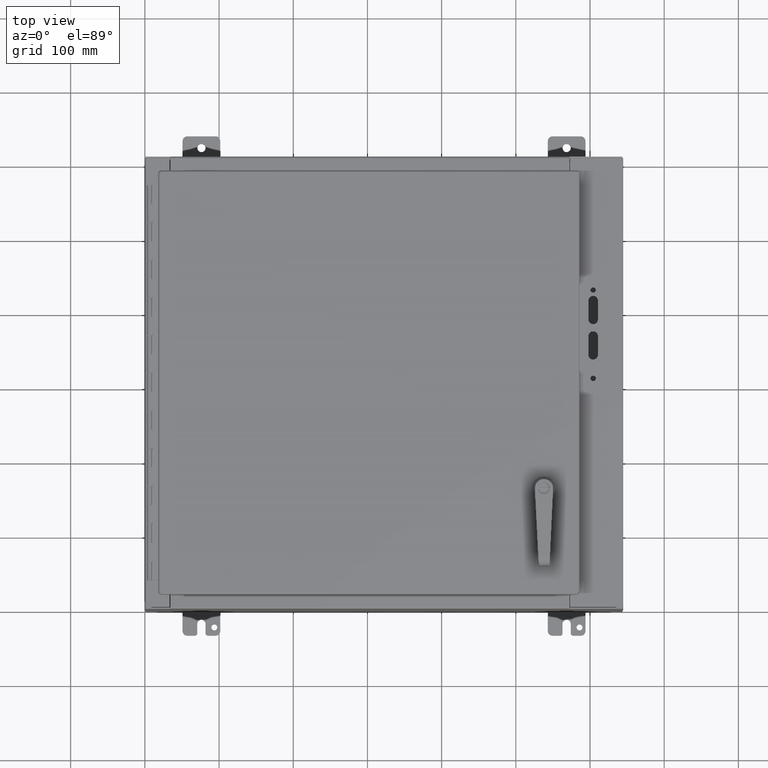
[diagram: clean part render]
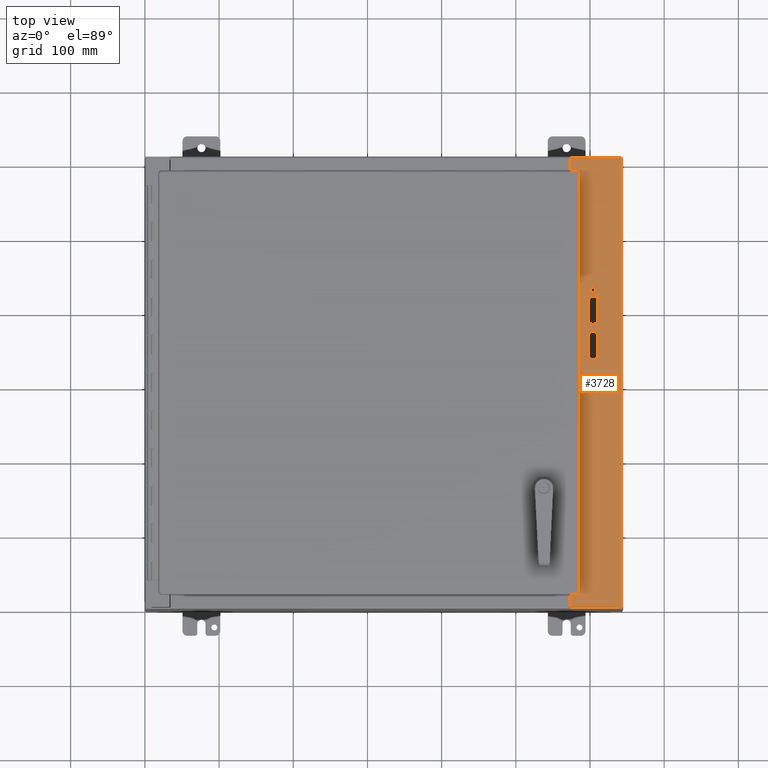
[diagram: same view with one face highlighted and labeled with its STEP entity id]
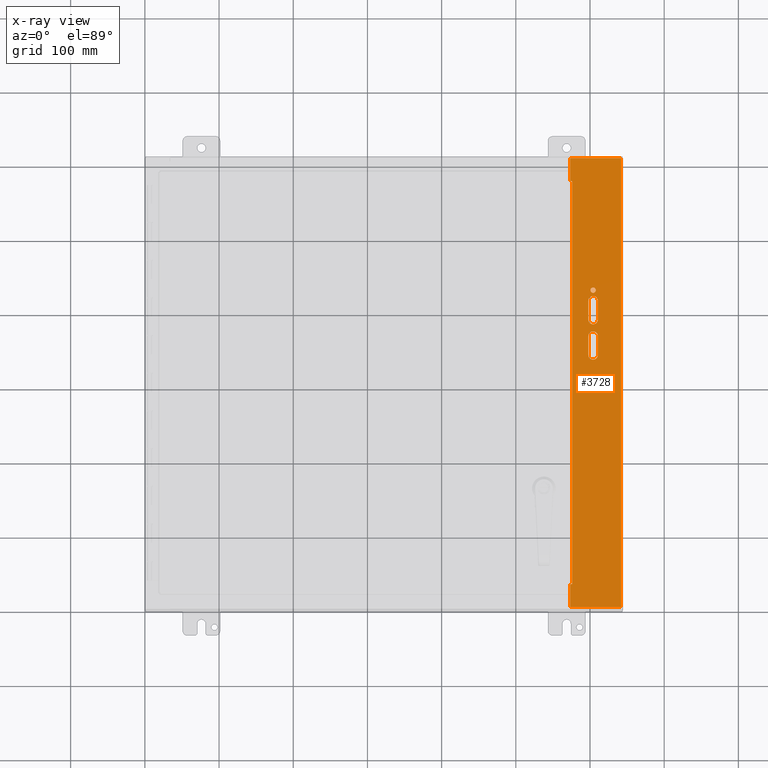
[diagram: x-ray of the same camera — body ghosted, the highlighted face saturated]
A machine part, top view. The second image highlights one B-rep face of the part: STEP entity #3728.
The next image is the same camera in x-ray: the body ghosted, the highlighted face saturated — about 0% of this face is hidden behind the body in this view.
In plain terms, the highlighted planar face has unit normal (0, 0, 1).
Its self-contained STEP definition (entity closure, byte-faithful):
#1162=CARTESIAN_POINT('',(24.037000000000614,15.347499999999499,10.000000000000069));
#1163=VERTEX_POINT('',#1162);
#1170=CARTESIAN_POINT('',(24.037000000000614,16.347499999999499,10.000000000000069));
#1171=VERTEX_POINT('',#1170);
#1172=CARTESIAN_POINT('',(24.037000000000614,16.347499999999499,10.000000000000071));
#1173=DIRECTION('',(0.0,-1.0,0.0));
#1174=VECTOR('',#1173,1.0);
#1175=LINE('',#1172,#1174);
#1176=EDGE_CURVE('',#1171,#1163,#1175,.T.);
#1202=CARTESIAN_POINT('',(23.537000000000614,16.347499999999499,10.000000000000101));
#1203=VERTEX_POINT('',#1202);
#1204=CARTESIAN_POINT('',(23.787000000000617,16.347499999999499,10.000000000000115));
#1205=DIRECTION('',(0.0,0.0,-1.0));
#1206=DIRECTION('',(-1.0,0.0,0.0));
#1207=AXIS2_PLACEMENT_3D('',#1204,#1205,#1206);
#1208=CIRCLE('',#1207,0.25);
#1209=EDGE_CURVE('',#1203,#1171,#1208,.T.);
#1234=CARTESIAN_POINT('',(23.537000000000617,15.347499999999499,10.000000000000101));
#1235=VERTEX_POINT('',#1234);
#1236=CARTESIAN_POINT('',(23.537000000000614,15.347499999999501,10.000000000000101));
#1237=DIRECTION('',(0.0,1.0,0.0));
#1238=VECTOR('',#1237,0.999999999999998);
#1239=LINE('',#1236,#1238);
#1240=EDGE_CURVE('',#1235,#1203,#1239,.T.);
#1264=CARTESIAN_POINT('',(23.787000000000617,15.347499999999499,10.000000000000115));
#1265=DIRECTION('',(0.0,0.0,-1.0));
#1266=DIRECTION('',(1.0,0.0,0.0));
#1267=AXIS2_PLACEMENT_3D('',#1264,#1265,#1266);
#1268=CIRCLE('',#1267,0.25);
#1269=EDGE_CURVE('',#1163,#1235,#1268,.T.);
#1290=CARTESIAN_POINT('',(24.037000000000617,13.472499999999499,10.000000000000071));
#1291=VERTEX_POINT('',#1290);
#1298=CARTESIAN_POINT('',(24.037000000000614,14.472499999999499,10.000000000000069));
#1299=VERTEX_POINT('',#1298);
#1300=CARTESIAN_POINT('',(24.037000000000621,14.472499999999499,10.000000000000071));
#1301=DIRECTION('',(0.0,-1.0,0.0));
#1302=VECTOR('',#1301,1.0);
#1303=LINE('',#1300,#1302);
#1304=EDGE_CURVE('',#1299,#1291,#1303,.T.);
#1330=CARTESIAN_POINT('',(23.537000000000617,14.472499999999499,10.000000000000101));
#1331=VERTEX_POINT('',#1330);
#1332=CARTESIAN_POINT('',(23.787000000000617,14.472499999999499,10.000000000000115));
#1333=DIRECTION('',(0.0,0.0,-1.0));
#1334=DIRECTION('',(-1.0,0.0,0.0));
#1335=AXIS2_PLACEMENT_3D('',#1332,#1333,#1334);
#1336=CIRCLE('',#1335,0.25);
#1337=EDGE_CURVE('',#1331,#1299,#1336,.T.);
#1362=CARTESIAN_POINT('',(23.537000000000617,13.472499999999499,10.000000000000101));
#1363=VERTEX_POINT('',#1362);
#1364=CARTESIAN_POINT('',(23.537000000000617,13.472499999999499,10.000000000000103));
#1365=DIRECTION('',(0.0,1.0,0.0));
#1366=VECTOR('',#1365,1.0);
#1367=LINE('',#1364,#1366);
#1368=EDGE_CURVE('',#1363,#1331,#1367,.T.);
#1392=CARTESIAN_POINT('',(23.787000000000617,13.472499999999499,10.000000000000115));
#1393=DIRECTION('',(0.0,0.0,-1.0));
#1394=DIRECTION('',(1.0,0.0,0.0));
#1395=AXIS2_PLACEMENT_3D('',#1392,#1393,#1394);
#1396=CIRCLE('',#1395,0.25);
#1397=EDGE_CURVE('',#1291,#1363,#1396,.T.);
#1419=CARTESIAN_POINT('',(23.92750000000062,12.222499999999501,10.00000000000008));
#1420=VERTEX_POINT('',#1419);
#1421=CARTESIAN_POINT('',(23.787000000000617,12.222499999999501,10.000000000000115));
#1422=DIRECTION('',(0.0,0.0,-1.0));
#1423=DIRECTION('',(-1.0,0.0,0.0));
#1424=AXIS2_PLACEMENT_3D('',#1421,#1422,#1423);
#1425=CIRCLE('',#1424,0.1405);
#1426=EDGE_CURVE('',#1420,#1420,#1425,.T.);
#1447=CARTESIAN_POINT('',(23.927500000000613,16.909999999999499,10.000000000000076));
#1448=VERTEX_POINT('',#1447);
#1449=CARTESIAN_POINT('',(23.787000000000614,16.909999999999499,10.000000000000115));
#1450=DIRECTION('',(0.0,0.0,-1.0));
#1451=DIRECTION('',(-1.0,0.0,0.0));
#1452=AXIS2_PLACEMENT_3D('',#1449,#1450,#1451);
#1453=CIRCLE('',#1452,0.1405);
#1454=EDGE_CURVE('',#1448,#1448,#1453,.T.);
#2210=CARTESIAN_POINT('',(22.672950000000647,1.312999999999992,10.000000000000162));
#2211=VERTEX_POINT('',#2210);
#2218=CARTESIAN_POINT('',(22.672750000000644,1.312999999999992,10.000000000000162));
#2219=VERTEX_POINT('',#2218);
#2220=CARTESIAN_POINT('',(22.672750000000644,1.312999999999992,10.000000000000163));
#2221=DIRECTION('',(1.0,0.0,0.0));
#2222=VECTOR('',#2221,0.000200000000003);
#2223=LINE('',#2220,#2222);
#2224=EDGE_CURVE('',#2219,#2211,#2223,.T.);
#2326=CARTESIAN_POINT('',(22.672750000000633,22.687000000000005,10.000000000000147));
#2327=VERTEX_POINT('',#2326);
#2335=CARTESIAN_POINT('',(22.672950000000633,22.687000000000005,10.000000000000147));
#2336=VERTEX_POINT('',#2335);
#2337=CARTESIAN_POINT('',(22.672950000000633,22.687000000000005,10.000000000000149));
#2338=DIRECTION('',(-1.0,0.0,0.0));
#2339=VECTOR('',#2338,0.000200000000003);
#2340=LINE('',#2337,#2339);
#2341=EDGE_CURVE('',#2336,#2327,#2340,.T.);
#3507=CARTESIAN_POINT('',(22.672750000000629,22.687000000000005,10.000000000000149));
#3508=DIRECTION('',(0.0,-1.0,0.0));
#3509=VECTOR('',#3508,21.374000000000013);
#3510=LINE('',#3507,#3509);
#3511=EDGE_CURVE('',#2327,#2219,#3510,.T.);
#3539=CARTESIAN_POINT('',(22.567500000000617,22.687200000000004,10.000000000000156));
#3540=VERTEX_POINT('',#3539);
#3541=CARTESIAN_POINT('',(22.672950000000633,22.687200000000004,10.000000000000147));
#3542=VERTEX_POINT('',#3541);
#3543=CARTESIAN_POINT('',(22.567500000000617,22.687200000000004,10.000000000000156));
#3544=DIRECTION('',(1.0,0.0,0.0));
#3545=VECTOR('',#3544,0.105450000000015);
#3546=LINE('',#3543,#3545);
#3547=EDGE_CURVE('',#3540,#3542,#3546,.T.);
#3579=CARTESIAN_POINT('',(22.672950000000633,22.687200000000004,10.000000000000151));
#3580=DIRECTION('',(0.0,-1.0,0.0));
#3581=VECTOR('',#3580,0.0002);
#3582=LINE('',#3579,#3581);
#3583=EDGE_CURVE('',#3542,#2336,#3582,.T.);
#3601=CARTESIAN_POINT('',(22.672950000000647,1.312799999999992,10.000000000000162));
#3602=VERTEX_POINT('',#3601);
#3603=CARTESIAN_POINT('',(22.672950000000647,1.312999999999992,10.000000000000165));
#3604=DIRECTION('',(0.0,-1.0,0.0));
#3605=VECTOR('',#3604,0.0002);
#3606=LINE('',#3603,#3605);
#3607=EDGE_CURVE('',#2211,#3602,#3606,.T.);
#3632=CARTESIAN_POINT('',(22.567500000000631,1.312799999999992,10.000000000000171));
#3633=VERTEX_POINT('',#3632);
#3634=CARTESIAN_POINT('',(22.672950000000647,1.312799999999992,10.000000000000163));
#3635=DIRECTION('',(-1.0,0.0,0.0));
#3636=VECTOR('',#3635,0.105450000000015);
#3637=LINE('',#3634,#3636);
#3638=EDGE_CURVE('',#3602,#3633,#3637,.T.);
#3658=CARTESIAN_POINT('',(25.306000000000626,0.078999999999995,10.000000000000002));
#3659=DIRECTION('',(0.0,0.0,1.0));
#3660=DIRECTION('',(1.0,0.0,0.0));
#3661=AXIS2_PLACEMENT_3D('',#3658,#3659,#3660);
#3662=PLANE('',#3661);
#3663=ORIENTED_EDGE('',*,*,#3547,.T.);
#3664=ORIENTED_EDGE('',*,*,#3583,.T.);
#3665=ORIENTED_EDGE('',*,*,#2341,.T.);
#3666=ORIENTED_EDGE('',*,*,#3511,.T.);
#3667=ORIENTED_EDGE('',*,*,#2224,.T.);
#3668=ORIENTED_EDGE('',*,*,#3607,.T.);
#3669=ORIENTED_EDGE('',*,*,#3638,.T.);
#3670=CARTESIAN_POINT('',(22.567500000000631,0.078999999999992,10.000000000000172));
#3671=VERTEX_POINT('',#3670);
#3672=CARTESIAN_POINT('',(22.567500000000631,0.078999999999992,10.000000000000172));
#3673=DIRECTION('',(0.0,1.0,0.0));
#3674=VECTOR('',#3673,1.233799999999999);
#3675=LINE('',#3672,#3674);
#3676=EDGE_CURVE('',#3671,#3633,#3675,.T.);
#3677=ORIENTED_EDGE('',*,*,#3676,.F.);
#3678=CARTESIAN_POINT('',(25.27475000000064,0.078999999999994,10.000000000000011));
#3679=VERTEX_POINT('',#3678);
#3680=CARTESIAN_POINT('',(22.567500000000631,0.078999999999992,10.000000000000172));
#3681=DIRECTION('',(1.0,0.0,0.0));
#3682=VECTOR('',#3681,2.707249999999991);
#3683=LINE('',#3680,#3682);
#3684=EDGE_CURVE('',#3671,#3679,#3683,.T.);
#3685=ORIENTED_EDGE('',*,*,#3684,.T.);
#3686=CARTESIAN_POINT('',(25.274750000000939,23.921000000000006,9.999999999999995));
#3687=VERTEX_POINT('',#3686);
#3688=CARTESIAN_POINT('',(25.274750000000942,23.921000000000006,9.99999999999968));
#3689=DIRECTION('',(0.0,-1.0,0.0));
#3690=VECTOR('',#3689,23.842000000000009);
#3691=LINE('',#3688,#3690);
#3692=EDGE_CURVE('',#3687,#3679,#3691,.T.);
#3693=ORIENTED_EDGE('',*,*,#3692,.F.);
#3694=CARTESIAN_POINT('',(22.567500000000617,23.921000000000006,10.000000000000155));
#3695=VERTEX_POINT('',#3694);
#3696=CARTESIAN_POINT('',(25.274750000000616,23.921000000000006,9.999999999999986));
#3697=DIRECTION('',(-1.0,0.0,0.0));
#3698=VECTOR('',#3697,2.707249999999998);
#3699=LINE('',#3696,#3698);
#3700=EDGE_CURVE('',#3687,#3695,#3699,.T.);
#3701=ORIENTED_EDGE('',*,*,#3700,.T.);
#3702=CARTESIAN_POINT('',(22.567500000000617,22.687200000000008,10.000000000000156));
#3703=DIRECTION('',(0.0,1.0,0.0));
#3704=VECTOR('',#3703,1.233799999999999);
#3705=LINE('',#3702,#3704);
#3706=EDGE_CURVE('',#3540,#3695,#3705,.T.);
#3707=ORIENTED_EDGE('',*,*,#3706,.F.);
#3708=EDGE_LOOP('',(#3663,#3664,#3665,#3666,#3667,#3668,#3669,#3677,#3685,#3693,#3701,#3707));
#3709=FACE_OUTER_BOUND('',#3708,.T.);
#3710=ORIENTED_EDGE('',*,*,#1176,.T.);
#3711=ORIENTED_EDGE('',*,*,#1269,.T.);
#3712=ORIENTED_EDGE('',*,*,#1240,.T.);
#3713=ORIENTED_EDGE('',*,*,#1209,.T.);
#3714=EDGE_LOOP('',(#3710,#3711,#3712,#3713));
#3715=FACE_BOUND('',#3714,.T.);
#3716=ORIENTED_EDGE('',*,*,#1304,.T.);
#3717=ORIENTED_EDGE('',*,*,#1397,.T.);
#3718=ORIENTED_EDGE('',*,*,#1368,.T.);
#3719=ORIENTED_EDGE('',*,*,#1337,.T.);
#3720=EDGE_LOOP('',(#3716,#3717,#3718,#3719));
#3721=FACE_BOUND('',#3720,.T.);
#3722=ORIENTED_EDGE('',*,*,#1426,.T.);
#3723=EDGE_LOOP('',(#3722));
#3724=FACE_BOUND('',#3723,.T.);
#3725=ORIENTED_EDGE('',*,*,#1454,.T.);
#3726=EDGE_LOOP('',(#3725));
#3727=FACE_BOUND('',#3726,.T.);
#3728=ADVANCED_FACE('',(#3709,#3715,#3721,#3724,#3727),#3662,.T.);